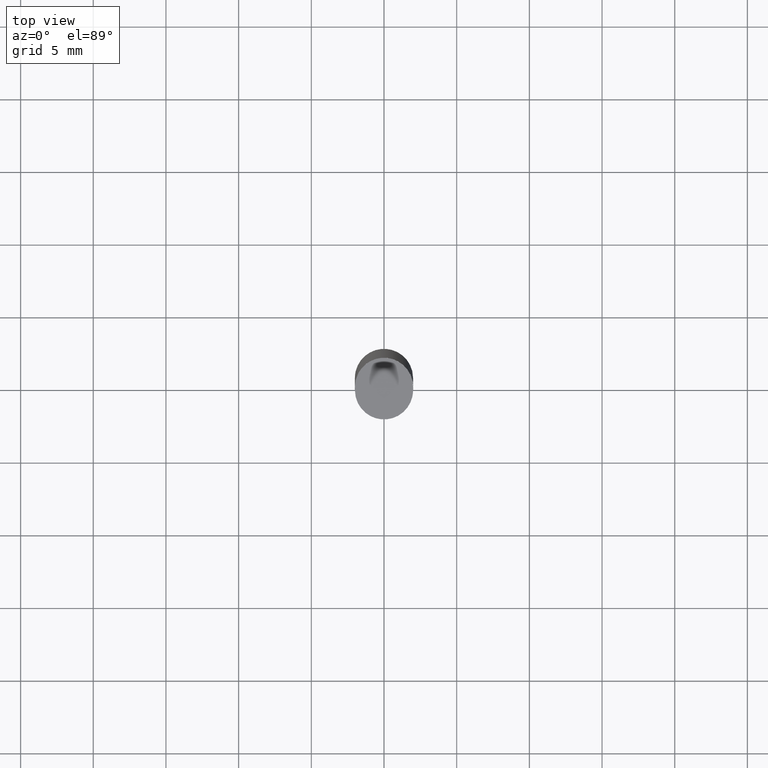
[diagram: clean part render]
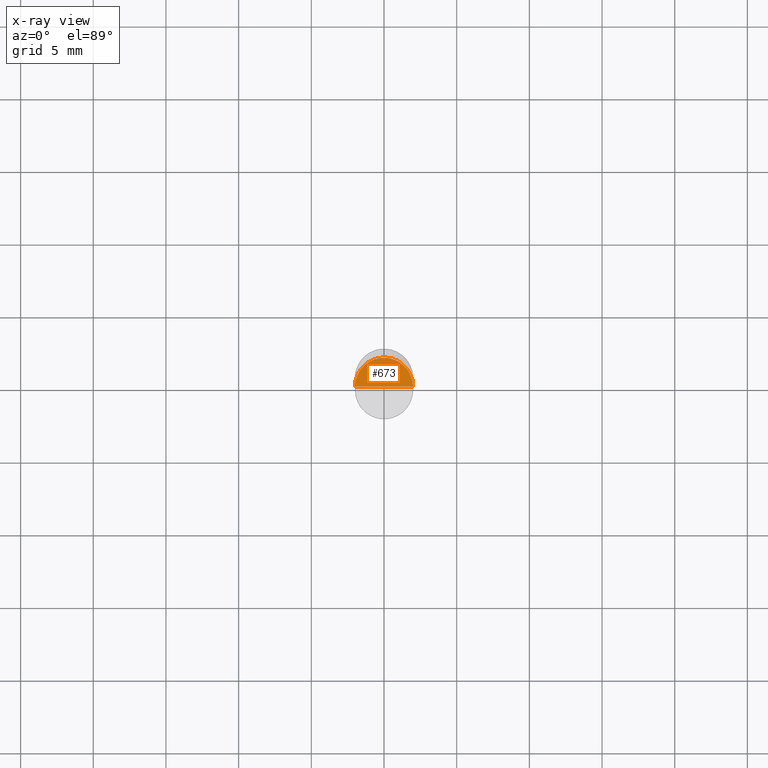
[diagram: x-ray — body ghosted, one internal face saturated and labeled with its STEP entity id]
A machine part, top view, then the same camera in x-ray: the body is ghosted and one INTERNAL B-rep face — a face not visible from any outside direction — is saturated and labeled: STEP entity #673.
In plain terms, the highlighted face is a freeform B-spline surface patch.
Its self-contained STEP definition (entity closure, byte-faithful):
#517=CARTESIAN_POINT('',(2.0,0.0,0.0));
#518=CARTESIAN_POINT('',(2.0,2.0,0.0));
#519=CARTESIAN_POINT('',(0.0,2.0,0.0));
#520=CARTESIAN_POINT('',(-2.0,2.0,0.0));
#521=CARTESIAN_POINT('',(-2.0,0.0,0.0));
#522=CARTESIAN_POINT('',(0.0,0.0,0.0));
#658=(
BOUNDED_SURFACE()
B_SPLINE_SURFACE(1,2,(
(#522,#522,#522,#522,#522),
(#517,#518,#519,#520,#521)
), .UNSPECIFIED.,.F.,.F.,.F.)
B_SPLINE_SURFACE_WITH_KNOTS((2,2),(3,2,3),(
0.0,1.0),(
0.0,0.5,1.0), .UNSPECIFIED.)
GEOMETRIC_REPRESENTATION_ITEM()
RATIONAL_B_SPLINE_SURFACE(((1.0,0.707106781187,1.0,0.707106781187,1.0),
(1.0,0.707106781187,1.0,0.707106781187,1.0)
))
REPRESENTATION_ITEM('')
SURFACE()
);
#659=(
BOUNDED_CURVE()
B_SPLINE_CURVE(1,(#521,#522),.UNSPECIFIED.,.F.,.F.)
B_SPLINE_CURVE_WITH_KNOTS((2,2),
(0.0,1.0),.UNSPECIFIED.)
CURVE()
GEOMETRIC_REPRESENTATION_ITEM()
RATIONAL_B_SPLINE_CURVE((1.0,1.0))
REPRESENTATION_ITEM('')
);
#660=(
BOUNDED_CURVE()
B_SPLINE_CURVE(1,(#522,#517),.UNSPECIFIED.,.F.,.F.)
B_SPLINE_CURVE_WITH_KNOTS((2,2),
(0.0,1.0),.UNSPECIFIED.)
CURVE()
GEOMETRIC_REPRESENTATION_ITEM()
RATIONAL_B_SPLINE_CURVE((1.0,1.0))
REPRESENTATION_ITEM('')
);
#661=(
BOUNDED_CURVE()
B_SPLINE_CURVE(2,(#517,#518,#519,#520,#521),.UNSPECIFIED.,.F.,.F.)
B_SPLINE_CURVE_WITH_KNOTS((3,2,3),
(0.0,0.5,1.0),.UNSPECIFIED.)
CURVE()
GEOMETRIC_REPRESENTATION_ITEM()
RATIONAL_B_SPLINE_CURVE((1.0,0.707106781187,1.0,0.707106781187,1.0))
REPRESENTATION_ITEM('')
);
#662=VERTEX_POINT('',#517);
#663=VERTEX_POINT('',#521);
#664=VERTEX_POINT('',#522);
#665=EDGE_CURVE('',#663,#664,#659,.T.);
#666=EDGE_CURVE('',#664,#662,#660,.T.);
#667=EDGE_CURVE('',#662,#663,#661,.T.);
#668=ORIENTED_EDGE('',*,*,#665,.T.);
#669=ORIENTED_EDGE('',*,*,#666,.T.);
#670=ORIENTED_EDGE('',*,*,#667,.T.);
#671=EDGE_LOOP('',(#668,#669,#670));
#672=FACE_OUTER_BOUND('',#671,.T.);
#673=ADVANCED_FACE('',(#672),#658,.T.);